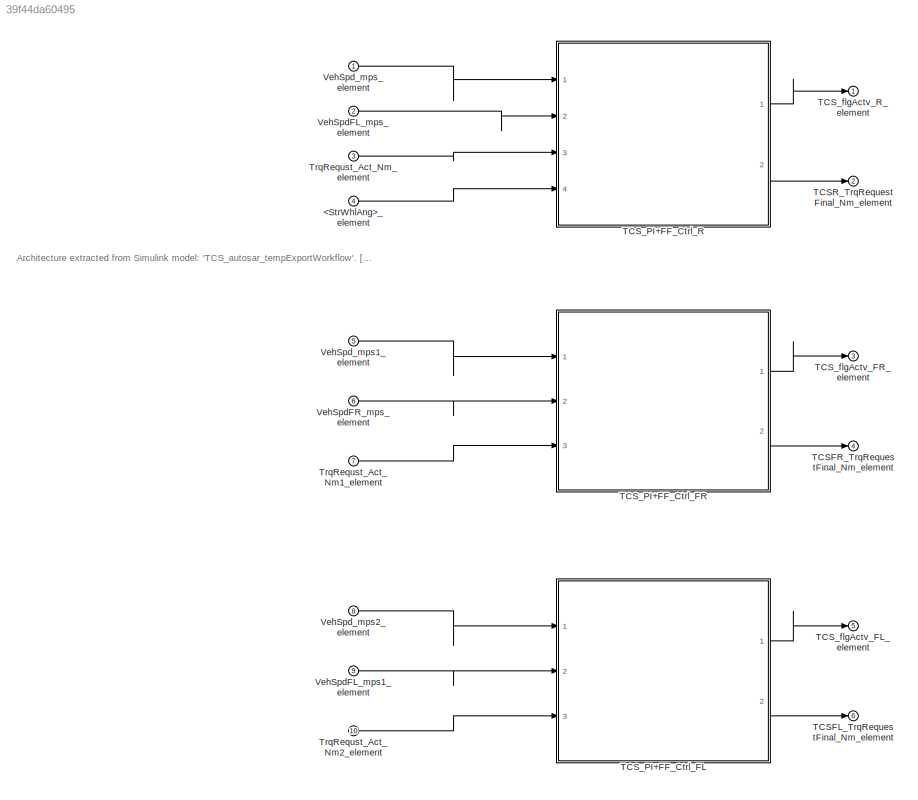
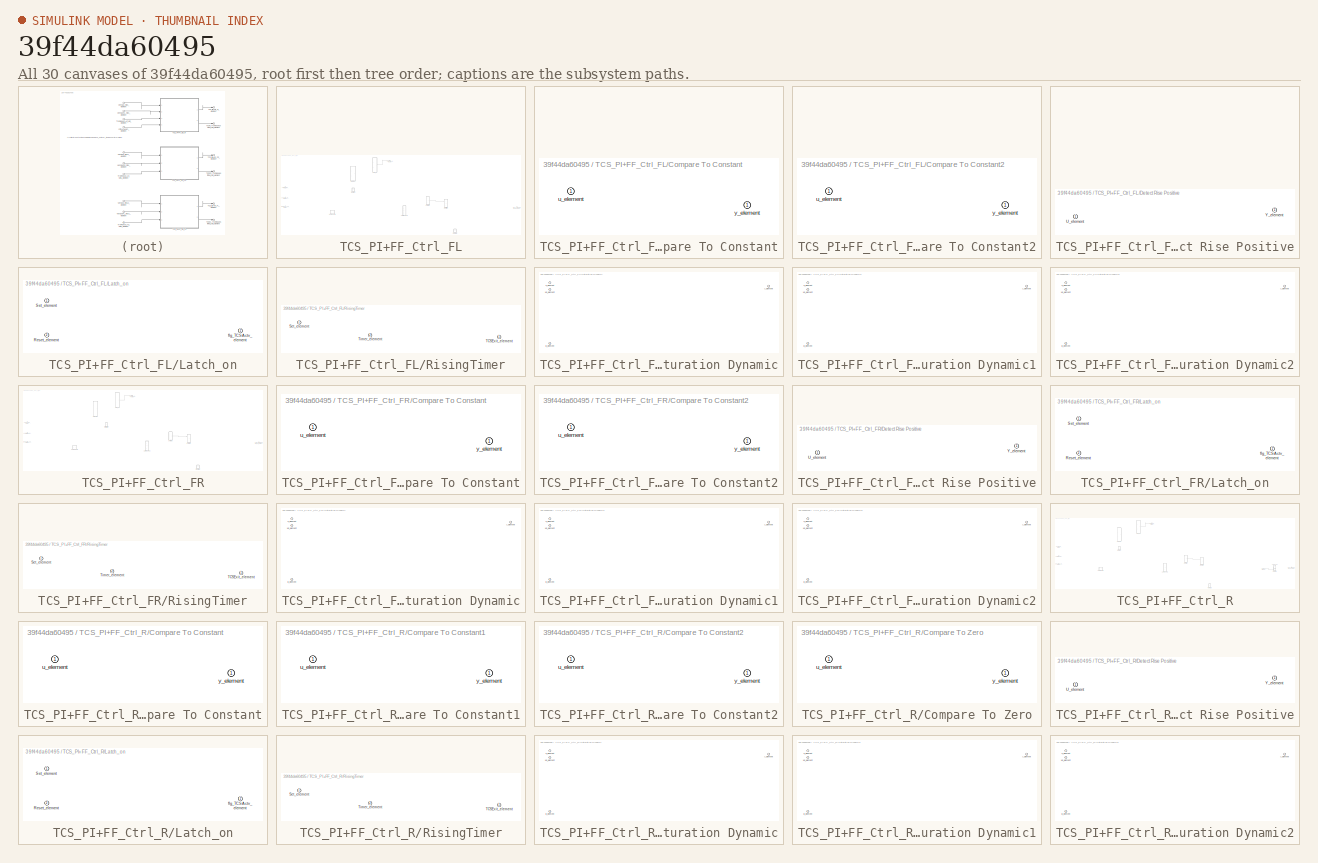
[diagram: thumbnail index - all 30 canvases of the model, root first then tree order]
MODEL slx_39f44da60495
KIND model
CONFIG AbsTol = auto
CONFIG EnableMultiTasking = off
CONFIG FixedStep = auto
CONFIG MaxStep = auto
CONFIG MinStep = auto
CONFIG RelTol = 1e-3
CONFIG SampleTimeConstraint = Unconstrained
CONFIG Solver = VariableStepAuto
CONFIG SolverName = VariableStepAuto
CONFIG StartTime = 0.0
CONFIG StopTime = 10.0
BLOCK [Inport] <StrWhlAng>_element
  IconDisplay = Port number
  Port = 4
BLOCK [Outport] TCSFL_TrqRequestFinal_Nm_element
  IconDisplay = Port number
  Port = 6
BLOCK [Outport] TCSFR_TrqRequestFinal_Nm_element
  IconDisplay = Port number
  Port = 4
BLOCK [Outport] TCSR_TrqRequestFinal_Nm_element
  IconDisplay = Port number
  Port = 2
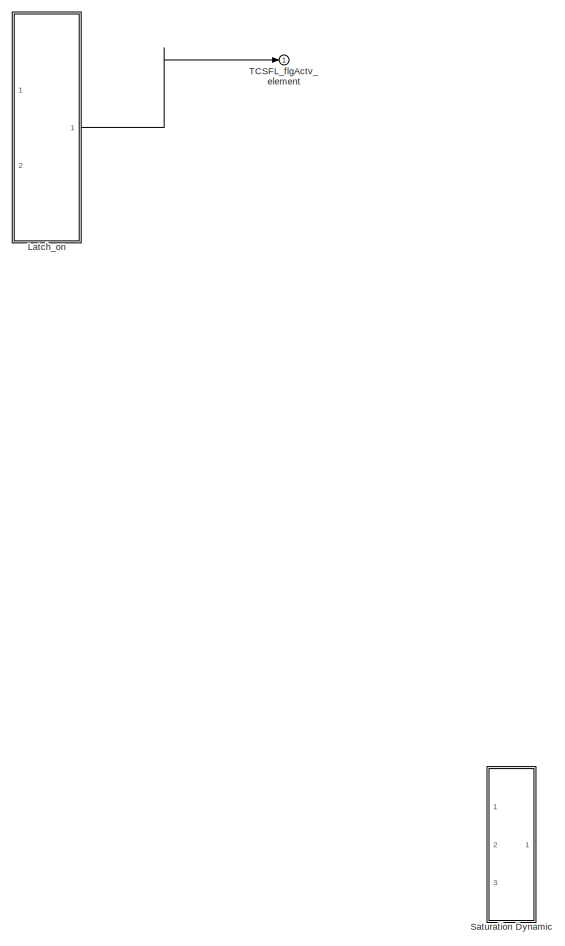
[diagram: TCS_PI+FF_Ctrl_FL - part 1/3, center side, full height]
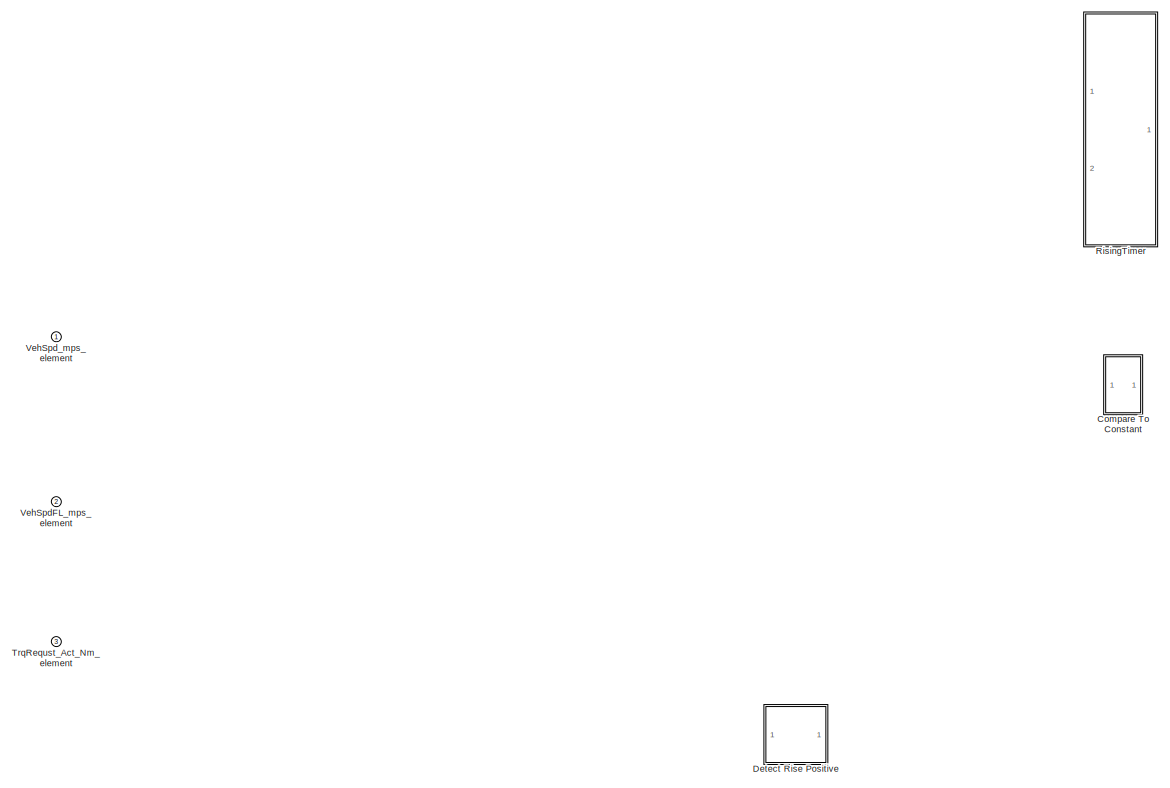
[diagram: TCS_PI+FF_Ctrl_FL - part 2/3, middle left region]
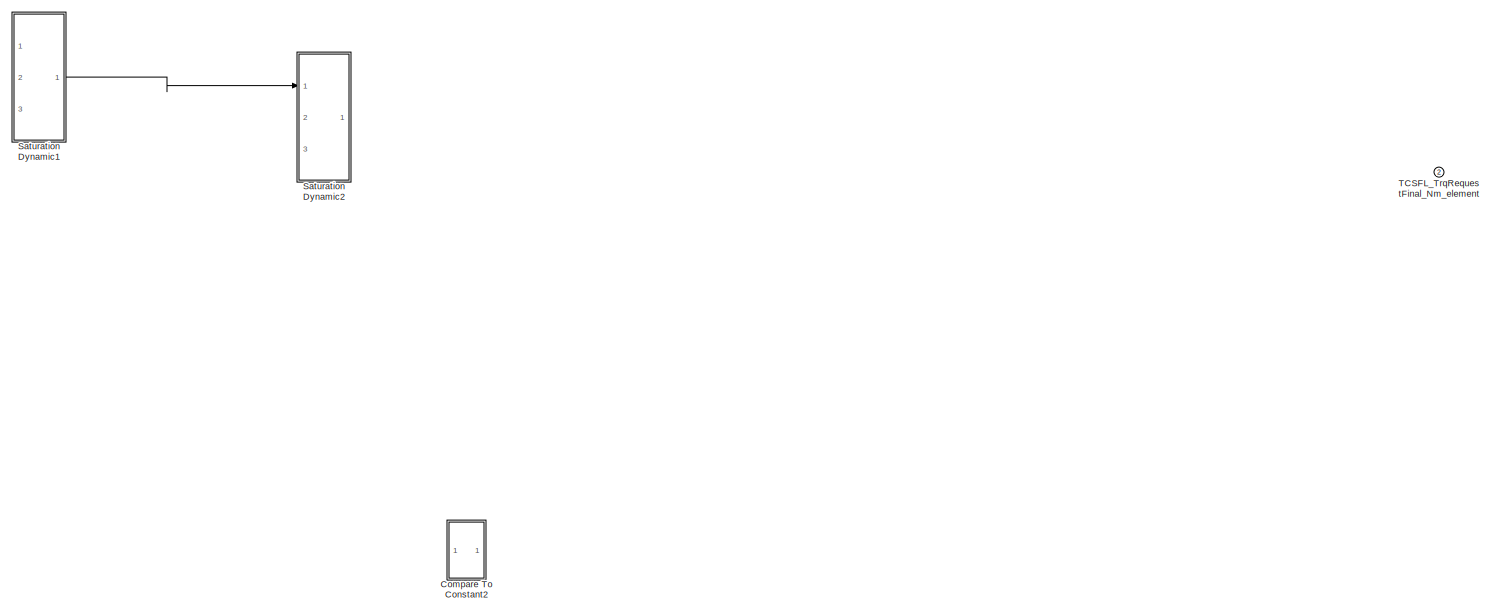
[diagram: TCS_PI+FF_Ctrl_FL - part 3/3, bottom right region]
BLOCK [SubSystem] TCS_PI+FF_Ctrl_FL
  PortSchema = {"entries":[{"content":{"headerSize":26,"margin":15,"minimumSpacing":25,"sides":[{"content":{"connectorIds":["In1","In2","In3"]},"type":"ConnectorPlacement.EquallySpacedRectSide","uuid":"eaf1fc9b-c735-4d64-9f98-dd2769dd9966"},{"content":{"connectorIds":["Out1","Out2"],"side":"RIGHT"},"type":"ConnectorPlacement.EquallySpacedRectSide","uuid":"44921fe4-cdee-42c2-ba14-46e851cbb056"},{"content":{"conne...<+309ch>
  Ports = [3, 2]
  RequestExecContextInheritance = off
BLOCK [SubSystem] TCS_PI+FF_Ctrl_FL/Compare To Constant
  PortSchema = {"entries":[{"content":{"headerSize":26,"margin":15,"minimumSpacing":25,"sides":[{"content":{"connectorIds":["In1"]},"type":"ConnectorPlacement.EquallySpacedRectSide","uuid":"eaf1fc9b-c735-4d64-9f98-dd2769dd9966"},{"content":{"connectorIds":["Out1"],"side":"RIGHT"},"type":"ConnectorPlacement.EquallySpacedRectSide","uuid":"44921fe4-cdee-42c2-ba14-46e851cbb056"},{"content":{"connectorIds":[],"side":...<+290ch>  <repeated x11 — deduplicated; at blocks: Compare To Constant, Compare To Constant2, Detect Rise Positive, Compare To Constant1, Compare To Zero>
  Ports = [1, 1]
  RequestExecContextInheritance = off
BLOCK [Inport] TCS_PI+FF_Ctrl_FL/Compare To Constant/u_element
  IconDisplay = Port number
BLOCK [Outport] TCS_PI+FF_Ctrl_FL/Compare To Constant/y_element
  IconDisplay = Port number
BLOCK [SubSystem] TCS_PI+FF_Ctrl_FL/Compare To Constant2
  Ports = [1, 1]
  RequestExecContextInheritance = off
BLOCK [Inport] TCS_PI+FF_Ctrl_FL/Compare To Constant2/u_element
  IconDisplay = Port number
BLOCK [Outport] TCS_PI+FF_Ctrl_FL/Compare To Constant2/y_element
  IconDisplay = Port number
BLOCK [SubSystem] TCS_PI+FF_Ctrl_FL/Detect Rise Positive
  Ports = [1, 1]
  RequestExecContextInheritance = off
BLOCK [Inport] TCS_PI+FF_Ctrl_FL/Detect Rise Positive/U_element
  IconDisplay = Port number
BLOCK [Outport] TCS_PI+FF_Ctrl_FL/Detect Rise Positive/Y_element
  IconDisplay = Port number
BLOCK [SubSystem] TCS_PI+FF_Ctrl_FL/Latch_on
  PortSchema = {"entries":[{"content":{"headerSize":26,"margin":15,"minimumSpacing":25,"sides":[{"content":{"connectorIds":["In1","In2"]},"type":"ConnectorPlacement.EquallySpacedRectSide","uuid":"eaf1fc9b-c735-4d64-9f98-dd2769dd9966"},{"content":{"connectorIds":["Out1"],"side":"RIGHT"},"type":"ConnectorPlacement.EquallySpacedRectSide","uuid":"44921fe4-cdee-42c2-ba14-46e851cbb056"},{"content":{"connectorIds":[],"...<+296ch>  <repeated x6 — deduplicated; at blocks: Latch_on, RisingTimer>
  Ports = [2, 1]
  RequestExecContextInheritance = off
BLOCK [Inport] TCS_PI+FF_Ctrl_FL/Latch_on/Reset_element
  IconDisplay = Port number
  Port = 2
BLOCK [Inport] TCS_PI+FF_Ctrl_FL/Latch_on/Set_element
  IconDisplay = Port number
BLOCK [Outport] TCS_PI+FF_Ctrl_FL/Latch_on/flg_TCSActv_element
  IconDisplay = Port number
BLOCK [SubSystem] TCS_PI+FF_Ctrl_FL/RisingTimer
  Ports = [2, 1]
  RequestExecContextInheritance = off
BLOCK [Inport] TCS_PI+FF_Ctrl_FL/RisingTimer/Set_element
  IconDisplay = Port number
BLOCK [Outport] TCS_PI+FF_Ctrl_FL/RisingTimer/TCSExit_element
  IconDisplay = Port number
BLOCK [Inport] TCS_PI+FF_Ctrl_FL/RisingTimer/Timer_element
  IconDisplay = Port number
  Port = 2
BLOCK [SubSystem] TCS_PI+FF_Ctrl_FL/Saturation Dynamic
  PortSchema = {"entries":[{"content":{"headerSize":26,"margin":15,"minimumSpacing":25,"sides":[{"content":{"connectorIds":["In1","In2","In3"]},"type":"ConnectorPlacement.EquallySpacedRectSide","uuid":"eaf1fc9b-c735-4d64-9f98-dd2769dd9966"},{"content":{"connectorIds":["Out1"],"side":"RIGHT"},"type":"ConnectorPlacement.EquallySpacedRectSide","uuid":"44921fe4-cdee-42c2-ba14-46e851cbb056"},{"content":{"connectorIds...<+302ch>  <repeated x9 — deduplicated; at blocks: Saturation Dynamic, Saturation Dynamic1, Saturation Dynamic2>
  Ports = [3, 1]
  RequestExecContextInheritance = off
BLOCK [Inport] TCS_PI+FF_Ctrl_FL/Saturation Dynamic/lo_element
  IconDisplay = Port number
  Port = 3
BLOCK [Inport] TCS_PI+FF_Ctrl_FL/Saturation Dynamic/u_element
  IconDisplay = Port number
  Port = 2
BLOCK [Inport] TCS_PI+FF_Ctrl_FL/Saturation Dynamic/up_element
  IconDisplay = Port number
BLOCK [Outport] TCS_PI+FF_Ctrl_FL/Saturation Dynamic/y_element
  IconDisplay = Port number
BLOCK [SubSystem] TCS_PI+FF_Ctrl_FL/Saturation Dynamic1
  Ports = [3, 1]
  RequestExecContextInheritance = off
BLOCK [Inport] TCS_PI+FF_Ctrl_FL/Saturation Dynamic1/lo_element
  IconDisplay = Port number
  Port = 3
BLOCK [Inport] TCS_PI+FF_Ctrl_FL/Saturation Dynamic1/u_element
  IconDisplay = Port number
  Port = 2
BLOCK [Inport] TCS_PI+FF_Ctrl_FL/Saturation Dynamic1/up_element
  IconDisplay = Port number
BLOCK [Outport] TCS_PI+FF_Ctrl_FL/Saturation Dynamic1/y_element
  IconDisplay = Port number
BLOCK [SubSystem] TCS_PI+FF_Ctrl_FL/Saturation Dynamic2
  Ports = [3, 1]
  RequestExecContextInheritance = off
BLOCK [Inport] TCS_PI+FF_Ctrl_FL/Saturation Dynamic2/lo_element
  IconDisplay = Port number
  Port = 3
BLOCK [Inport] TCS_PI+FF_Ctrl_FL/Saturation Dynamic2/u_element
  IconDisplay = Port number
  Port = 2
BLOCK [Inport] TCS_PI+FF_Ctrl_FL/Saturation Dynamic2/up_element
  IconDisplay = Port number
BLOCK [Outport] TCS_PI+FF_Ctrl_FL/Saturation Dynamic2/y_element
  IconDisplay = Port number
BLOCK [Outport] TCS_PI+FF_Ctrl_FL/TCSFL_TrqRequestFinal_Nm_element
  IconDisplay = Port number
  Port = 2
BLOCK [Outport] TCS_PI+FF_Ctrl_FL/TCSFL_flgActv_element
  IconDisplay = Port number
BLOCK [Inport] TCS_PI+FF_Ctrl_FL/TrqRequst_Act_Nm_element
  IconDisplay = Port number
  Port = 3
BLOCK [Inport] TCS_PI+FF_Ctrl_FL/VehSpdFL_mps_element
  IconDisplay = Port number
  Port = 2
BLOCK [Inport] TCS_PI+FF_Ctrl_FL/VehSpd_mps_element
  IconDisplay = Port number
BLOCK [SubSystem] TCS_PI+FF_Ctrl_FR
  PortSchema = {"entries":[{"content":{"headerSize":26,"margin":15,"minimumSpacing":25,"sides":[{"content":{"connectorIds":["In1","In2","In3"]},"type":"ConnectorPlacement.EquallySpacedRectSide","uuid":"eaf1fc9b-c735-4d64-9f98-dd2769dd9966"},{"content":{"connectorIds":["Out1","Out2"],"side":"RIGHT"},"type":"ConnectorPlacement.EquallySpacedRectSide","uuid":"44921fe4-cdee-42c2-ba14-46e851cbb056"},{"content":{"conne...<+309ch>
  Ports = [3, 2]
  RequestExecContextInheritance = off
BLOCK [SubSystem] TCS_PI+FF_Ctrl_FR/Compare To Constant
  Ports = [1, 1]
  RequestExecContextInheritance = off
BLOCK [Inport] TCS_PI+FF_Ctrl_FR/Compare To Constant/u_element
  IconDisplay = Port number
BLOCK [Outport] TCS_PI+FF_Ctrl_FR/Compare To Constant/y_element
  IconDisplay = Port number
BLOCK [SubSystem] TCS_PI+FF_Ctrl_FR/Compare To Constant2
  Ports = [1, 1]
  RequestExecContextInheritance = off
BLOCK [Inport] TCS_PI+FF_Ctrl_FR/Compare To Constant2/u_element
  IconDisplay = Port number
BLOCK [Outport] TCS_PI+FF_Ctrl_FR/Compare To Constant2/y_element
  IconDisplay = Port number
BLOCK [SubSystem] TCS_PI+FF_Ctrl_FR/Detect Rise Positive
  Ports = [1, 1]
  RequestExecContextInheritance = off
BLOCK [Inport] TCS_PI+FF_Ctrl_FR/Detect Rise Positive/U_element
  IconDisplay = Port number
BLOCK [Outport] TCS_PI+FF_Ctrl_FR/Detect Rise Positive/Y_element
  IconDisplay = Port number
BLOCK [SubSystem] TCS_PI+FF_Ctrl_FR/Latch_on
  Ports = [2, 1]
  RequestExecContextInheritance = off
BLOCK [Inport] TCS_PI+FF_Ctrl_FR/Latch_on/Reset_element
  IconDisplay = Port number
  Port = 2
BLOCK [Inport] TCS_PI+FF_Ctrl_FR/Latch_on/Set_element
  IconDisplay = Port number
BLOCK [Outport] TCS_PI+FF_Ctrl_FR/Latch_on/flg_TCSActv_element
  IconDisplay = Port number
BLOCK [SubSystem] TCS_PI+FF_Ctrl_FR/RisingTimer
  Ports = [2, 1]
  RequestExecContextInheritance = off
BLOCK [Inport] TCS_PI+FF_Ctrl_FR/RisingTimer/Set_element
  IconDisplay = Port number
BLOCK [Outport] TCS_PI+FF_Ctrl_FR/RisingTimer/TCSExit_element
  IconDisplay = Port number
BLOCK [Inport] TCS_PI+FF_Ctrl_FR/RisingTimer/Timer_element
  IconDisplay = Port number
  Port = 2
BLOCK [SubSystem] TCS_PI+FF_Ctrl_FR/Saturation Dynamic
  Ports = [3, 1]
  RequestExecContextInheritance = off
BLOCK [Inport] TCS_PI+FF_Ctrl_FR/Saturation Dynamic/lo_element
  IconDisplay = Port number
  Port = 3
BLOCK [Inport] TCS_PI+FF_Ctrl_FR/Saturation Dynamic/u_element
  IconDisplay = Port number
  Port = 2
BLOCK [Inport] TCS_PI+FF_Ctrl_FR/Saturation Dynamic/up_element
  IconDisplay = Port number
BLOCK [Outport] TCS_PI+FF_Ctrl_FR/Saturation Dynamic/y_element
  IconDisplay = Port number
BLOCK [SubSystem] TCS_PI+FF_Ctrl_FR/Saturation Dynamic1
  Ports = [3, 1]
  RequestExecContextInheritance = off
BLOCK [Inport] TCS_PI+FF_Ctrl_FR/Saturation Dynamic1/lo_element
  IconDisplay = Port number
  Port = 3
BLOCK [Inport] TCS_PI+FF_Ctrl_FR/Saturation Dynamic1/u_element
  IconDisplay = Port number
  Port = 2
BLOCK [Inport] TCS_PI+FF_Ctrl_FR/Saturation Dynamic1/up_element
  IconDisplay = Port number
BLOCK [Outport] TCS_PI+FF_Ctrl_FR/Saturation Dynamic1/y_element
  IconDisplay = Port number
BLOCK [SubSystem] TCS_PI+FF_Ctrl_FR/Saturation Dynamic2
  Ports = [3, 1]
  RequestExecContextInheritance = off
BLOCK [Inport] TCS_PI+FF_Ctrl_FR/Saturation Dynamic2/lo_element
  IconDisplay = Port number
  Port = 3
BLOCK [Inport] TCS_PI+FF_Ctrl_FR/Saturation Dynamic2/u_element
  IconDisplay = Port number
  Port = 2
BLOCK [Inport] TCS_PI+FF_Ctrl_FR/Saturation Dynamic2/up_element
  IconDisplay = Port number
BLOCK [Outport] TCS_PI+FF_Ctrl_FR/Saturation Dynamic2/y_element
  IconDisplay = Port number
BLOCK [Outport] TCS_PI+FF_Ctrl_FR/TCSFR_TrqRequestFinal_Nm_element
  IconDisplay = Port number
  Port = 2
BLOCK [Outport] TCS_PI+FF_Ctrl_FR/TCSFR_flgActv_element
  IconDisplay = Port number
BLOCK [Inport] TCS_PI+FF_Ctrl_FR/TrqRequst_Act_Nm_element
  IconDisplay = Port number
  Port = 3
BLOCK [Inport] TCS_PI+FF_Ctrl_FR/VehSpdFR_mps_element
  IconDisplay = Port number
  Port = 2
BLOCK [Inport] TCS_PI+FF_Ctrl_FR/VehSpd_mps_element
  IconDisplay = Port number
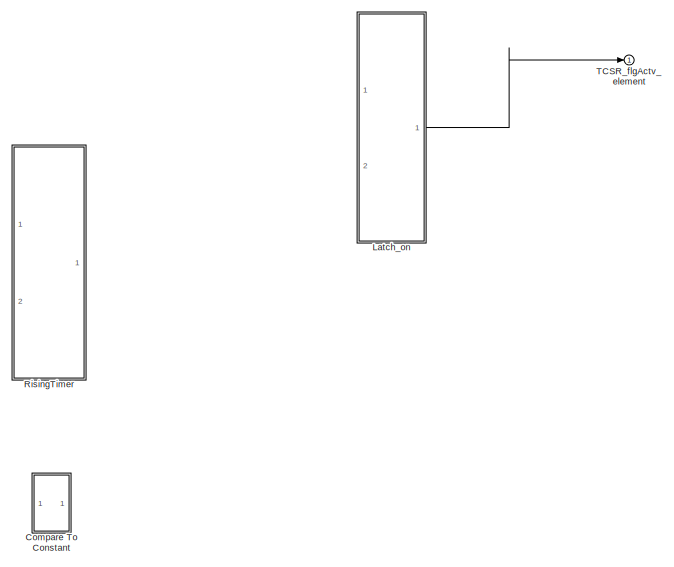
[diagram: TCS_PI+FF_Ctrl_R - part 1/4, top center region]
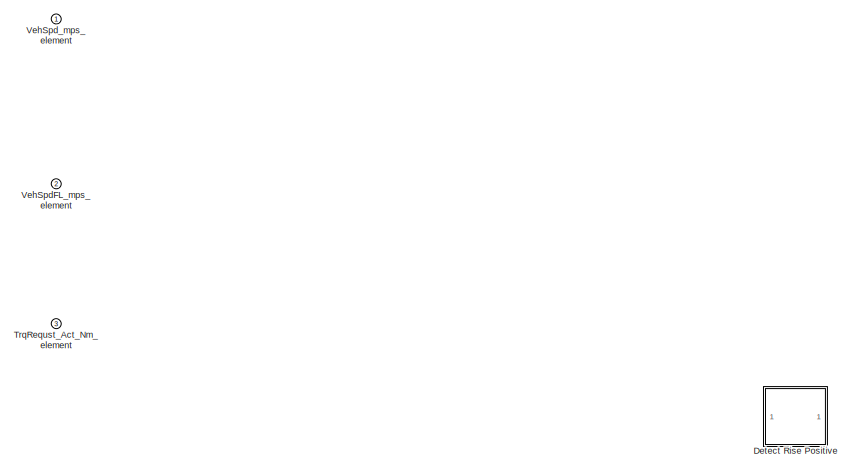
[diagram: TCS_PI+FF_Ctrl_R - part 2/4, middle left region]
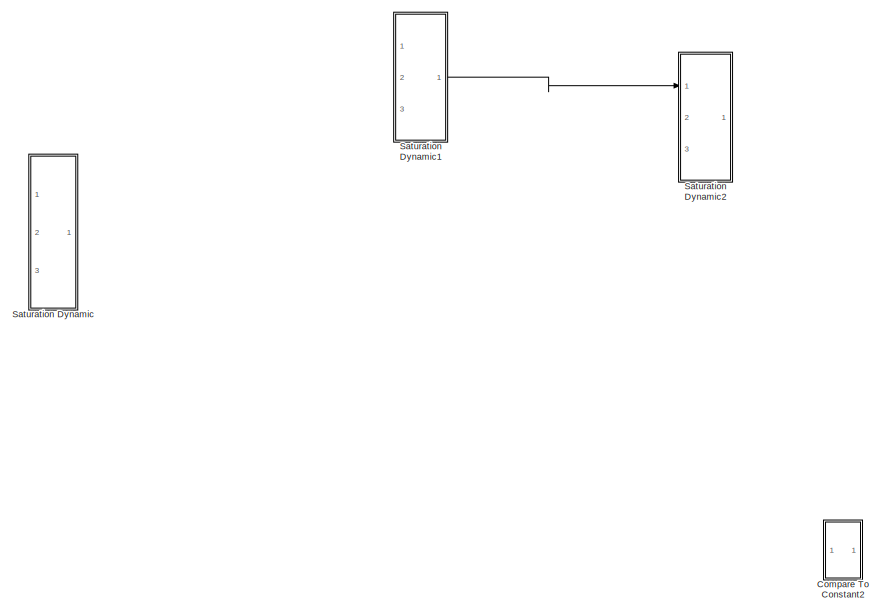
[diagram: TCS_PI+FF_Ctrl_R - part 3/4, bottom center region]
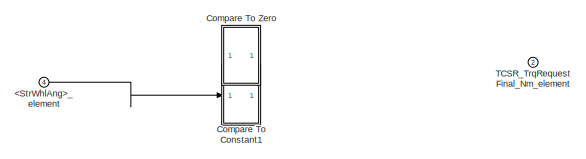
[diagram: TCS_PI+FF_Ctrl_R - part 4/4, bottom right region]
BLOCK [SubSystem] TCS_PI+FF_Ctrl_R
  PortSchema = {"entries":[{"content":{"headerSize":26,"margin":15,"minimumSpacing":25,"sides":[{"content":{"connectorIds":["In1","In2","In3","In4"]},"type":"ConnectorPlacement.EquallySpacedRectSide","uuid":"eaf1fc9b-c735-4d64-9f98-dd2769dd9966"},{"content":{"connectorIds":["Out1","Out2"],"side":"RIGHT"},"type":"ConnectorPlacement.EquallySpacedRectSide","uuid":"44921fe4-cdee-42c2-ba14-46e851cbb056"},{"content":{...<+315ch>
  Ports = [4, 2]
  RequestExecContextInheritance = off
BLOCK [Inport] TCS_PI+FF_Ctrl_R/<StrWhlAng>_element
  IconDisplay = Port number
  Port = 4
BLOCK [SubSystem] TCS_PI+FF_Ctrl_R/Compare To Constant
  Ports = [1, 1]
  RequestExecContextInheritance = off
BLOCK [Inport] TCS_PI+FF_Ctrl_R/Compare To Constant/u_element
  IconDisplay = Port number
BLOCK [Outport] TCS_PI+FF_Ctrl_R/Compare To Constant/y_element
  IconDisplay = Port number
BLOCK [SubSystem] TCS_PI+FF_Ctrl_R/Compare To Constant1
  Ports = [1, 1]
  RequestExecContextInheritance = off
BLOCK [Inport] TCS_PI+FF_Ctrl_R/Compare To Constant1/u_element
  IconDisplay = Port number
BLOCK [Outport] TCS_PI+FF_Ctrl_R/Compare To Constant1/y_element
  IconDisplay = Port number
BLOCK [SubSystem] TCS_PI+FF_Ctrl_R/Compare To Constant2
  Ports = [1, 1]
  RequestExecContextInheritance = off
BLOCK [Inport] TCS_PI+FF_Ctrl_R/Compare To Constant2/u_element
  IconDisplay = Port number
BLOCK [Outport] TCS_PI+FF_Ctrl_R/Compare To Constant2/y_element
  IconDisplay = Port number
BLOCK [SubSystem] TCS_PI+FF_Ctrl_R/Compare To Zero
  Ports = [1, 1]
  RequestExecContextInheritance = off
BLOCK [Inport] TCS_PI+FF_Ctrl_R/Compare To Zero/u_element
  IconDisplay = Port number
BLOCK [Outport] TCS_PI+FF_Ctrl_R/Compare To Zero/y_element
  IconDisplay = Port number
BLOCK [SubSystem] TCS_PI+FF_Ctrl_R/Detect Rise Positive
  Ports = [1, 1]
  RequestExecContextInheritance = off
BLOCK [Inport] TCS_PI+FF_Ctrl_R/Detect Rise Positive/U_element
  IconDisplay = Port number
BLOCK [Outport] TCS_PI+FF_Ctrl_R/Detect Rise Positive/Y_element
  IconDisplay = Port number
BLOCK [SubSystem] TCS_PI+FF_Ctrl_R/Latch_on
  Ports = [2, 1]
  RequestExecContextInheritance = off
BLOCK [Inport] TCS_PI+FF_Ctrl_R/Latch_on/Reset_element
  IconDisplay = Port number
  Port = 2
BLOCK [Inport] TCS_PI+FF_Ctrl_R/Latch_on/Set_element
  IconDisplay = Port number
BLOCK [Outport] TCS_PI+FF_Ctrl_R/Latch_on/flg_TCSActv_element
  IconDisplay = Port number
BLOCK [SubSystem] TCS_PI+FF_Ctrl_R/RisingTimer
  Ports = [2, 1]
  RequestExecContextInheritance = off
BLOCK [Inport] TCS_PI+FF_Ctrl_R/RisingTimer/Set_element
  IconDisplay = Port number
BLOCK [Outport] TCS_PI+FF_Ctrl_R/RisingTimer/TCSExit_element
  IconDisplay = Port number
BLOCK [Inport] TCS_PI+FF_Ctrl_R/RisingTimer/Timer_element
  IconDisplay = Port number
  Port = 2
BLOCK [SubSystem] TCS_PI+FF_Ctrl_R/Saturation Dynamic
  Ports = [3, 1]
  RequestExecContextInheritance = off
BLOCK [Inport] TCS_PI+FF_Ctrl_R/Saturation Dynamic/lo_element
  IconDisplay = Port number
  Port = 3
BLOCK [Inport] TCS_PI+FF_Ctrl_R/Saturation Dynamic/u_element
  IconDisplay = Port number
  Port = 2
BLOCK [Inport] TCS_PI+FF_Ctrl_R/Saturation Dynamic/up_element
  IconDisplay = Port number
BLOCK [Outport] TCS_PI+FF_Ctrl_R/Saturation Dynamic/y_element
  IconDisplay = Port number
BLOCK [SubSystem] TCS_PI+FF_Ctrl_R/Saturation Dynamic1
  Ports = [3, 1]
  RequestExecContextInheritance = off
BLOCK [Inport] TCS_PI+FF_Ctrl_R/Saturation Dynamic1/lo_element
  IconDisplay = Port number
  Port = 3
BLOCK [Inport] TCS_PI+FF_Ctrl_R/Saturation Dynamic1/u_element
  IconDisplay = Port number
  Port = 2
BLOCK [Inport] TCS_PI+FF_Ctrl_R/Saturation Dynamic1/up_element
  IconDisplay = Port number
BLOCK [Outport] TCS_PI+FF_Ctrl_R/Saturation Dynamic1/y_element
  IconDisplay = Port number
BLOCK [SubSystem] TCS_PI+FF_Ctrl_R/Saturation Dynamic2
  Ports = [3, 1]
  RequestExecContextInheritance = off
BLOCK [Inport] TCS_PI+FF_Ctrl_R/Saturation Dynamic2/lo_element
  IconDisplay = Port number
  Port = 3
BLOCK [Inport] TCS_PI+FF_Ctrl_R/Saturation Dynamic2/u_element
  IconDisplay = Port number
  Port = 2
BLOCK [Inport] TCS_PI+FF_Ctrl_R/Saturation Dynamic2/up_element
  IconDisplay = Port number
BLOCK [Outport] TCS_PI+FF_Ctrl_R/Saturation Dynamic2/y_element
  IconDisplay = Port number
BLOCK [Outport] TCS_PI+FF_Ctrl_R/TCSR_TrqRequestFinal_Nm_element
  IconDisplay = Port number
  Port = 2
BLOCK [Outport] TCS_PI+FF_Ctrl_R/TCSR_flgActv_element
  IconDisplay = Port number
BLOCK [Inport] TCS_PI+FF_Ctrl_R/TrqRequst_Act_Nm_element
  IconDisplay = Port number
  Port = 3
BLOCK [Inport] TCS_PI+FF_Ctrl_R/VehSpdFL_mps_element
  IconDisplay = Port number
  Port = 2
BLOCK [Inport] TCS_PI+FF_Ctrl_R/VehSpd_mps_element
  IconDisplay = Port number
BLOCK [Outport] TCS_flgActv_FL_element
  IconDisplay = Port number
  Port = 5
BLOCK [Outport] TCS_flgActv_FR_element
  IconDisplay = Port number
  Port = 3
BLOCK [Outport] TCS_flgActv_R_element
  IconDisplay = Port number
BLOCK [Inport] TrqRequst_Act_Nm1_element
  IconDisplay = Port number
  Port = 7
BLOCK [Inport] TrqRequst_Act_Nm2_element
  IconDisplay = Port number
  Port = 10
BLOCK [Inport] TrqRequst_Act_Nm_element
  IconDisplay = Port number
  Port = 3
BLOCK [Inport] VehSpdFL_mps1_element
  IconDisplay = Port number
  Port = 9
BLOCK [Inport] VehSpdFL_mps_element
  IconDisplay = Port number
  Port = 2
BLOCK [Inport] VehSpdFR_mps_element
  IconDisplay = Port number
  Port = 6
BLOCK [Inport] VehSpd_mps1_element
  IconDisplay = Port number
  Port = 5
BLOCK [Inport] VehSpd_mps2_element
  IconDisplay = Port number
  Port = 8
BLOCK [Inport] VehSpd_mps_element
  IconDisplay = Port number
ANNOTATION (root): Architecture extracted from Simulink model: 'TCS_autosar_tempExportWorkflow'. [07-Sep-2024 11:24:47]
LINE <StrWhlAng>_element:1 -> TCS_PI+FF_Ctrl_R:4
LINE TCS_PI+FF_Ctrl_FL/Latch_on:1 -> TCS_PI+FF_Ctrl_FL/TCSFL_flgActv_element:1
LINE TCS_PI+FF_Ctrl_FL/Saturation Dynamic1:1 -> TCS_PI+FF_Ctrl_FL/Saturation Dynamic2:1
LINE TCS_PI+FF_Ctrl_FL:1 -> TCS_flgActv_FL_element:1
LINE TCS_PI+FF_Ctrl_FL:2 -> TCSFL_TrqRequestFinal_Nm_element:1
LINE TCS_PI+FF_Ctrl_FR/Latch_on:1 -> TCS_PI+FF_Ctrl_FR/TCSFR_flgActv_element:1
LINE TCS_PI+FF_Ctrl_FR/Saturation Dynamic1:1 -> TCS_PI+FF_Ctrl_FR/Saturation Dynamic2:1
LINE TCS_PI+FF_Ctrl_FR:1 -> TCS_flgActv_FR_element:1
LINE TCS_PI+FF_Ctrl_FR:2 -> TCSFR_TrqRequestFinal_Nm_element:1
LINE TCS_PI+FF_Ctrl_R/<StrWhlAng>_element:1 -> TCS_PI+FF_Ctrl_R/Compare To Constant1:1
LINE TCS_PI+FF_Ctrl_R/Latch_on:1 -> TCS_PI+FF_Ctrl_R/TCSR_flgActv_element:1
LINE TCS_PI+FF_Ctrl_R/Saturation Dynamic1:1 -> TCS_PI+FF_Ctrl_R/Saturation Dynamic2:1
LINE TCS_PI+FF_Ctrl_R:1 -> TCS_flgActv_R_element:1
LINE TCS_PI+FF_Ctrl_R:2 -> TCSR_TrqRequestFinal_Nm_element:1
LINE TrqRequst_Act_Nm1_element:1 -> TCS_PI+FF_Ctrl_FR:3
LINE TrqRequst_Act_Nm2_element:1 -> TCS_PI+FF_Ctrl_FL:3
LINE TrqRequst_Act_Nm_element:1 -> TCS_PI+FF_Ctrl_R:3
LINE VehSpdFL_mps1_element:1 -> TCS_PI+FF_Ctrl_FL:2
LINE VehSpdFL_mps_element:1 -> TCS_PI+FF_Ctrl_R:2
LINE VehSpdFR_mps_element:1 -> TCS_PI+FF_Ctrl_FR:2
LINE VehSpd_mps1_element:1 -> TCS_PI+FF_Ctrl_FR:1
LINE VehSpd_mps2_element:1 -> TCS_PI+FF_Ctrl_FL:1
LINE VehSpd_mps_element:1 -> TCS_PI+FF_Ctrl_R:1
